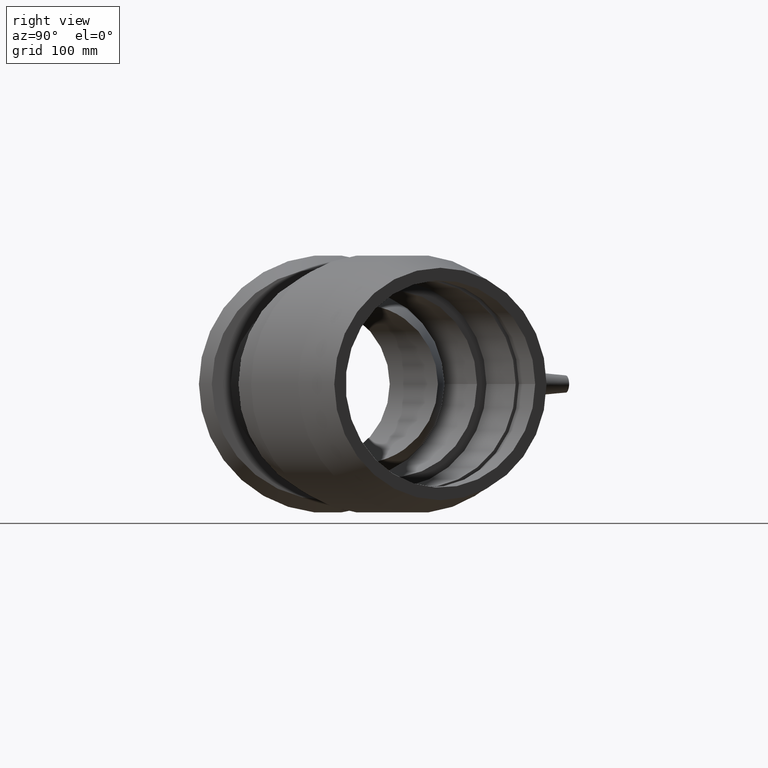
[diagram: clean part render]
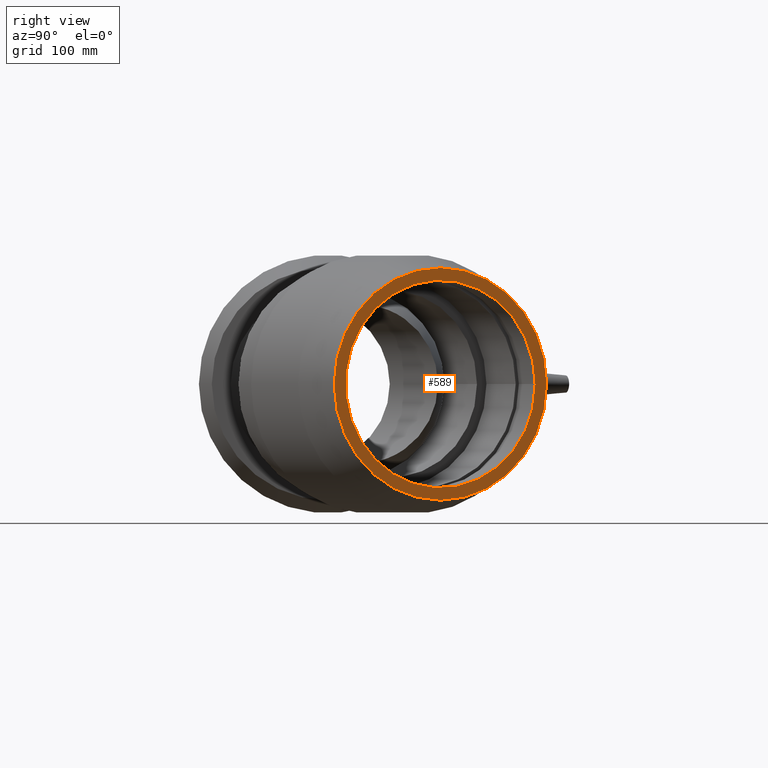
[diagram: same view with one face highlighted and labeled with its STEP entity id]
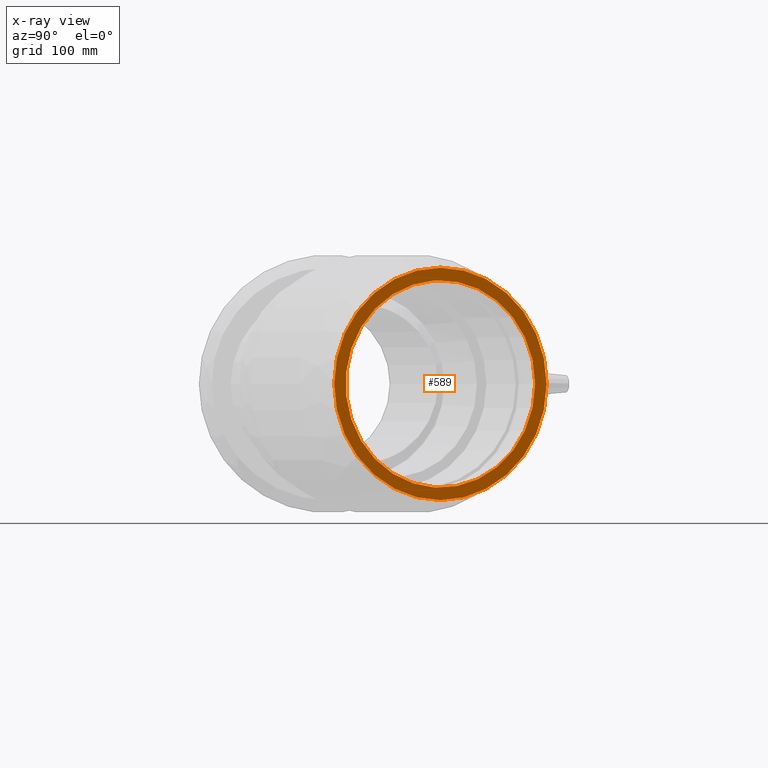
[diagram: x-ray of the same camera — body ghosted, the highlighted face saturated]
A machine part, right view. The second image highlights one B-rep face of the part: STEP entity #589.
The next image is the same camera in x-ray: the body ghosted, the highlighted face saturated — about 0% of this face is hidden behind the body in this view.
In plain terms, the highlighted planar face has unit normal (-0.9135, -0.4067, -0).
Its self-contained STEP definition (entity closure, byte-faithful):
#44=PLANE('',#688);
#110=FACE_BOUND('',#259,.T.);
#161=FACE_OUTER_BOUND('',#258,.T.);
#258=EDGE_LOOP('',(#534));
#259=EDGE_LOOP('',(#535));
#317=CIRCLE('',#687,90.);
#318=CIRCLE('',#689,100.8);
#369=VERTEX_POINT('',#1371);
#370=VERTEX_POINT('',#1374);
#425=EDGE_CURVE('',#369,#369,#317,.T.);
#426=EDGE_CURVE('',#370,#370,#318,.T.);
#534=ORIENTED_EDGE('',*,*,#426,.T.);
#535=ORIENTED_EDGE('',*,*,#425,.F.);
#589=ADVANCED_FACE('',(#161,#110),#44,.F.);
#687=AXIS2_PLACEMENT_3D('',#1372,#881,#882);
#688=AXIS2_PLACEMENT_3D('',#1373,#883,#884);
#689=AXIS2_PLACEMENT_3D('',#1375,#885,#886);
#881=DIRECTION('center_axis',(0.913545457642601,0.406736643075799,1.19788532833232E-16));
#882=DIRECTION('ref_axis',(1.19788532833232E-16,2.54618386665283E-17,-1.));
#883=DIRECTION('center_axis',(-0.913545457642601,-0.406736643075799,-1.19788532833232E-16));
#884=DIRECTION('ref_axis',(0.,0.,1.));
#885=DIRECTION('center_axis',(0.913545457642601,0.406736643075799,1.19788532833232E-16));
#886=DIRECTION('ref_axis',(1.19788532833232E-16,2.54618386665283E-17,-1.));
#1371=CARTESIAN_POINT('',(320.028072476112,179.747347326083,2.64316069006413E-14));
#1372=CARTESIAN_POINT('Origin',(356.634370352934,97.528256138249,2.87231723806288E-14));
#1373=CARTESIAN_POINT('Origin',(315.635316730894,189.613638268623,2.61566190430428E-14));
#1374=CARTESIAN_POINT('',(315.635316730894,189.613638268623,2.61566190430428E-14));
#1375=CARTESIAN_POINT('Origin',(356.634370352934,97.528256138249,2.87231723806288E-14));